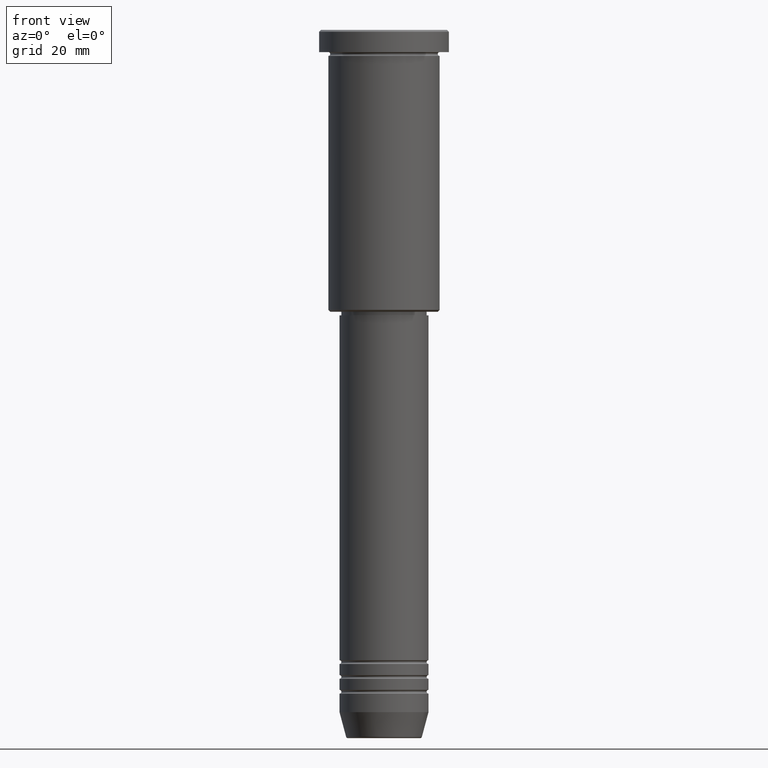
[diagram: clean part render]
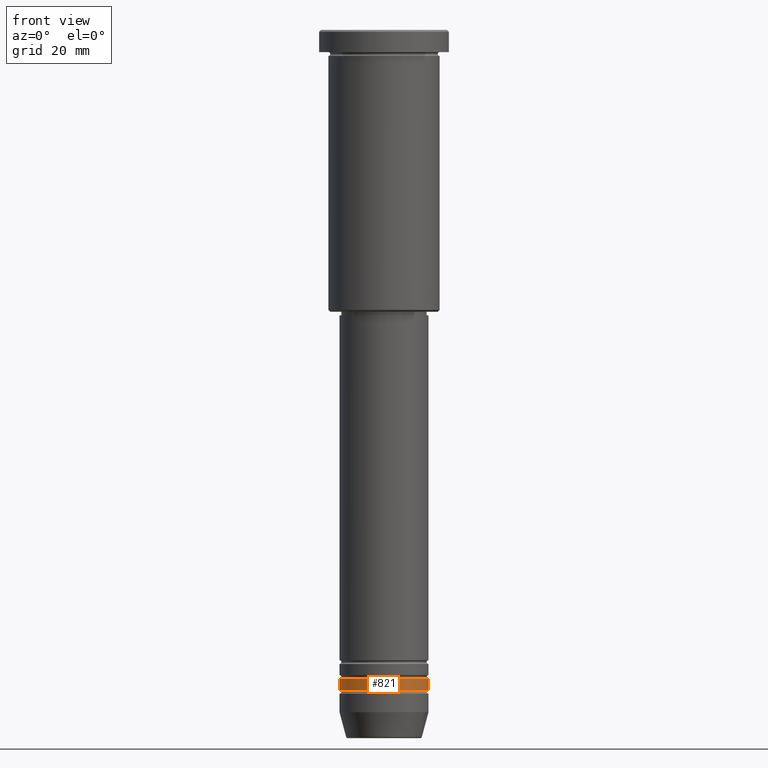
[diagram: same view with one face highlighted and labeled with its STEP entity id]
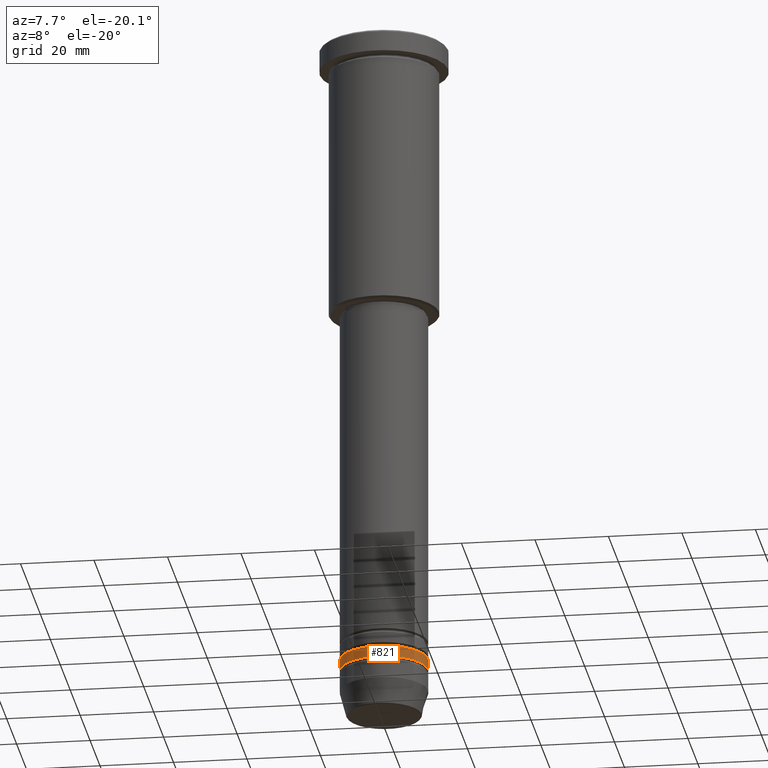
[diagram: same view with one face highlighted and labeled with its STEP entity id]
A machine part, front view. The second image highlights one B-rep face of the part: STEP entity #821.
A second angle (auxiliary view) of the same face is appended — the face is thin or edge-on in the first view.
In plain terms, the highlighted cylindrical surface (partial cylindrical patch) has radius 12 mm, axis along (-0, -0, 1).
Its self-contained STEP definition (entity closure, byte-faithful):
#21 = EDGE_LOOP ( 'NONE', ( #357, #822, #366, #886 ) ) ;
#71 = CARTESIAN_POINT ( 'NONE',  ( -12.00000000000000000, 1.469576158976823947E-15, 0.000000000000000000 ) ) ;
#73 = LINE ( 'NONE', #1089, #591 ) ;
#166 = CIRCLE ( 'NONE', #735, 12.00000000000000000 ) ;
#220 = FACE_OUTER_BOUND ( 'NONE', #21, .T. ) ;
#236 = AXIS2_PLACEMENT_3D ( 'NONE', #859, #1049, #405 ) ;
#277 = EDGE_CURVE ( 'NONE', #1119, #376, #73, .T. ) ;
#311 = DIRECTION ( 'NONE',  ( -0.000000000000000000, -0.000000000000000000, 1.000000000000000000 ) ) ;
#357 = ORIENTED_EDGE ( 'NONE', *, *, #597, .F. ) ;
#366 = ORIENTED_EDGE ( 'NONE', *, *, #277, .T. ) ;
#376 = VERTEX_POINT ( 'NONE', #749 ) ;
#389 = CARTESIAN_POINT ( 'NONE',  ( 0.000000000000000000, 0.000000000000000000, -177.9999999999998863 ) ) ;
#390 = VERTEX_POINT ( 'NONE', #820 ) ;
#405 = DIRECTION ( 'NONE',  ( 1.000000000000000000, 0.000000000000000000, 0.000000000000000000 ) ) ;
#432 = DIRECTION ( 'NONE',  ( -0.000000000000000000, -0.000000000000000000, 1.000000000000000000 ) ) ;
#451 = VERTEX_POINT ( 'NONE', #480 ) ;
#471 = VECTOR ( 'NONE', #980, 1000.000000000000000 ) ;
#480 = CARTESIAN_POINT ( 'NONE',  ( -12.00000000000000000, 1.469576158976823947E-15, -177.9999999999998863 ) ) ;
#561 = EDGE_CURVE ( 'NONE', #390, #376, #166, .T. ) ;
#583 = CYLINDRICAL_SURFACE ( 'NONE', #236, 12.00000000000000000 ) ;
#591 = VECTOR ( 'NONE', #432, 1000.000000000000000 ) ;
#597 = EDGE_CURVE ( 'NONE', #451, #390, #880, .T. ) ;
#643 = AXIS2_PLACEMENT_3D ( 'NONE', #389, #1041, #850 ) ;
#652 = CARTESIAN_POINT ( 'NONE',  ( 12.00000000000000000, 0.000000000000000000, -177.9999999999998863 ) ) ;
#684 = DIRECTION ( 'NONE',  ( 1.000000000000000000, 0.000000000000000000, 0.000000000000000000 ) ) ;
#735 = AXIS2_PLACEMENT_3D ( 'NONE', #1139, #311, #684 ) ;
#749 = CARTESIAN_POINT ( 'NONE',  ( 12.00000000000000000, 0.000000000000000000, -174.9999999999999147 ) ) ;
#820 = CARTESIAN_POINT ( 'NONE',  ( -12.00000000000000000, 1.469576158976823947E-15, -174.9999999999999147 ) ) ;
#821 = ADVANCED_FACE ( 'NONE', ( #220 ), #583, .T. ) ;
#822 = ORIENTED_EDGE ( 'NONE', *, *, #1176, .T. ) ;
#850 = DIRECTION ( 'NONE',  ( 1.000000000000000000, 0.000000000000000000, 0.000000000000000000 ) ) ;
#859 = CARTESIAN_POINT ( 'NONE',  ( 0.000000000000000000, 0.000000000000000000, 0.000000000000000000 ) ) ;
#880 = LINE ( 'NONE', #71, #471 ) ;
#886 = ORIENTED_EDGE ( 'NONE', *, *, #561, .F. ) ;
#980 = DIRECTION ( 'NONE',  ( -0.000000000000000000, -0.000000000000000000, 1.000000000000000000 ) ) ;
#1041 = DIRECTION ( 'NONE',  ( -0.000000000000000000, -0.000000000000000000, 1.000000000000000000 ) ) ;
#1049 = DIRECTION ( 'NONE',  ( -0.000000000000000000, -0.000000000000000000, 1.000000000000000000 ) ) ;
#1089 = CARTESIAN_POINT ( 'NONE',  ( 12.00000000000000000, 0.000000000000000000, 0.000000000000000000 ) ) ;
#1119 = VERTEX_POINT ( 'NONE', #652 ) ;
#1139 = CARTESIAN_POINT ( 'NONE',  ( 0.000000000000000000, 0.000000000000000000, -174.9999999999999147 ) ) ;
#1163 = CIRCLE ( 'NONE', #643, 12.00000000000000000 ) ;
#1176 = EDGE_CURVE ( 'NONE', #451, #1119, #1163, .T. ) ;